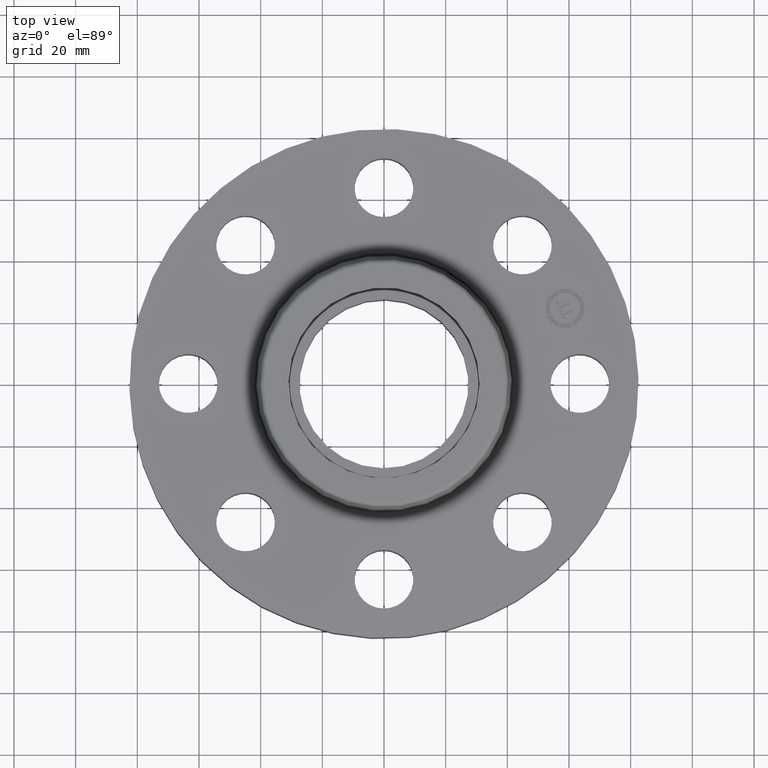
[diagram: clean part render]
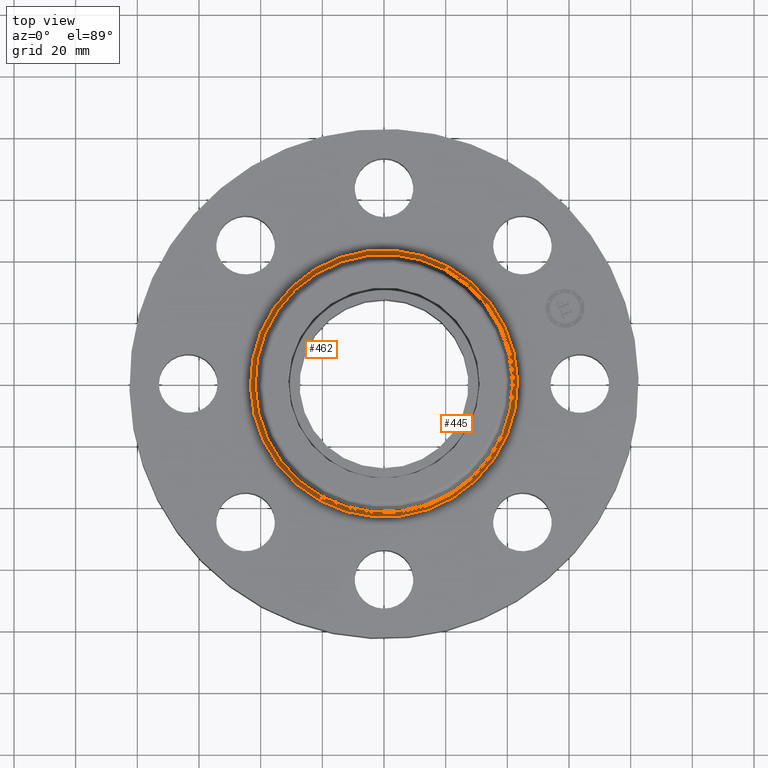
[diagram: same view with one multi-face feature highlighted, each face labeled with its STEP entity id]
A machine part, top view. The highlighted faces form ONE feature: a constant-radius fillet chain: 2 tangent blend faces with common blend radius 1.524 mm. The faces share edges in the B-rep.
Their STEP definitions:
[1] entity #445 (Torus):
#409=AXIS2_PLACEMENT_3D('Torus Axis2P3D',#406,#407,#408) ;
#413=AXIS2_PLACEMENT_3D('Circle Axis2P3D',#411,#412,$) ;
#422=AXIS2_PLACEMENT_3D('Circle Axis2P3D',#420,#421,$) ;
#429=AXIS2_PLACEMENT_3D('Circle Axis2P3D',#427,#428,$) ;
#436=AXIS2_PLACEMENT_3D('Circle Axis2P3D',#434,#435,$) ;
#406=CARTESIAN_POINT('Axis2P3D Location',(0.,0.,1.06)) ;
#411=CARTESIAN_POINT('Axis2P3D Location',(0.,0.,1.)) ;
#415=CARTESIAN_POINT('Vertex',(0.81758641395,1.49658189218,1.)) ;
#417=CARTESIAN_POINT('Vertex',(-0.81758641395,-1.49658189218,1.)) ;
#420=CARTESIAN_POINT('Axis2P3D Location',(0.81758641395,1.49658189218,1.06)) ;
#424=CARTESIAN_POINT('Vertex',(0.789257894706,1.44472688552,1.04958110934)) ;
#427=CARTESIAN_POINT('Axis2P3D Location',(0.,0.,1.04958110934)) ;
#431=CARTESIAN_POINT('Vertex',(-0.789257894706,-1.44472688552,1.04958110934)) ;
#434=CARTESIAN_POINT('Axis2P3D Location',(-0.81758641395,-1.49658189218,1.06)) ;
#407=DIRECTION('Axis2P3D Direction',(0.,0.,-0.0393700787402)) ;
#408=DIRECTION('Axis2P3D XDirection',(-0.0188750212049,-0.0345504945626,0.)) ;
#412=DIRECTION('Axis2P3D Direction',(0.,0.,-0.0393700787402)) ;
#421=DIRECTION('Axis2P3D Direction',(-0.0345504945626,0.0188750212049,0.)) ;
#428=DIRECTION('Axis2P3D Direction',(0.,0.,-0.0393700787402)) ;
#435=DIRECTION('Axis2P3D Direction',(0.0345504945626,-0.0188750212049,0.)) ;
#440=ORIENTED_EDGE('',*,*,#419,.F.) ;
#441=ORIENTED_EDGE('',*,*,#426,.T.) ;
#442=ORIENTED_EDGE('',*,*,#433,.T.) ;
#443=ORIENTED_EDGE('',*,*,#438,.F.) ;
#445=ADVANCED_FACE('PartBody',(#444),#410,.F.) ;
#414=CIRCLE('generated circle',#413,1.70534597788) ;
#423=CIRCLE('generated circle',#422,0.0600000000002) ;
#430=CIRCLE('generated circle',#429,1.6462575127) ;
#437=CIRCLE('generated circle',#436,0.0600000000002) ;
#410=TOROIDAL_SURFACE('homeo Torus',#409,1.70534597788,0.0600000000002) ;
#419=EDGE_CURVE('',#416,#418,#414,.T.) ;
#426=EDGE_CURVE('',#416,#425,#423,.T.) ;
#433=EDGE_CURVE('',#425,#432,#430,.T.) ;
#438=EDGE_CURVE('',#418,#432,#437,.T.) ;
#439=EDGE_LOOP('',(#440,#441,#442,#443)) ;
#444=FACE_OUTER_BOUND('',#439,.T.) ;
#416=VERTEX_POINT('',#415) ;
#418=VERTEX_POINT('',#417) ;
#425=VERTEX_POINT('',#424) ;
#432=VERTEX_POINT('',#431) ;
[2] entity #462 (Torus):
#409=AXIS2_PLACEMENT_3D('Torus Axis2P3D',#406,#407,#408) ;
#422=AXIS2_PLACEMENT_3D('Circle Axis2P3D',#420,#421,$) ;
#436=AXIS2_PLACEMENT_3D('Circle Axis2P3D',#434,#435,$) ;
#448=AXIS2_PLACEMENT_3D('Circle Axis2P3D',#446,#447,$) ;
#453=AXIS2_PLACEMENT_3D('Circle Axis2P3D',#451,#452,$) ;
#406=CARTESIAN_POINT('Axis2P3D Location',(0.,0.,1.06)) ;
#415=CARTESIAN_POINT('Vertex',(0.81758641395,1.49658189218,1.)) ;
#417=CARTESIAN_POINT('Vertex',(-0.81758641395,-1.49658189218,1.)) ;
#420=CARTESIAN_POINT('Axis2P3D Location',(0.81758641395,1.49658189218,1.06)) ;
#424=CARTESIAN_POINT('Vertex',(0.789257894706,1.44472688552,1.04958110934)) ;
#431=CARTESIAN_POINT('Vertex',(-0.789257894706,-1.44472688552,1.04958110934)) ;
#434=CARTESIAN_POINT('Axis2P3D Location',(-0.81758641395,-1.49658189218,1.06)) ;
#446=CARTESIAN_POINT('Axis2P3D Location',(0.,0.,1.)) ;
#451=CARTESIAN_POINT('Axis2P3D Location',(0.,0.,1.04958110934)) ;
#407=DIRECTION('Axis2P3D Direction',(0.,0.,-0.0393700787402)) ;
#408=DIRECTION('Axis2P3D XDirection',(-0.0188750212049,-0.0345504945626,0.)) ;
#421=DIRECTION('Axis2P3D Direction',(-0.0345504945626,0.0188750212049,0.)) ;
#435=DIRECTION('Axis2P3D Direction',(0.0345504945626,-0.0188750212049,0.)) ;
#447=DIRECTION('Axis2P3D Direction',(0.,0.,-0.0393700787402)) ;
#452=DIRECTION('Axis2P3D Direction',(0.,0.,-0.0393700787402)) ;
#457=ORIENTED_EDGE('',*,*,#450,.F.) ;
#458=ORIENTED_EDGE('',*,*,#438,.T.) ;
#459=ORIENTED_EDGE('',*,*,#455,.T.) ;
#460=ORIENTED_EDGE('',*,*,#426,.F.) ;
#462=ADVANCED_FACE('PartBody',(#461),#410,.F.) ;
#423=CIRCLE('generated circle',#422,0.0600000000002) ;
#437=CIRCLE('generated circle',#436,0.0600000000002) ;
#449=CIRCLE('generated circle',#448,1.70534597788) ;
#454=CIRCLE('generated circle',#453,1.6462575127) ;
#410=TOROIDAL_SURFACE('homeo Torus',#409,1.70534597788,0.0600000000002) ;
#426=EDGE_CURVE('',#416,#425,#423,.T.) ;
#438=EDGE_CURVE('',#418,#432,#437,.T.) ;
#450=EDGE_CURVE('',#418,#416,#449,.T.) ;
#455=EDGE_CURVE('',#432,#425,#454,.T.) ;
#456=EDGE_LOOP('',(#457,#458,#459,#460)) ;
#461=FACE_OUTER_BOUND('',#456,.T.) ;
#416=VERTEX_POINT('',#415) ;
#418=VERTEX_POINT('',#417) ;
#425=VERTEX_POINT('',#424) ;
#432=VERTEX_POINT('',#431) ;